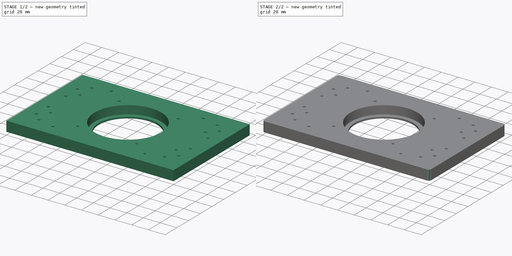
[diagram: build sequence overview — one tinted view per stage of 2, left to right]
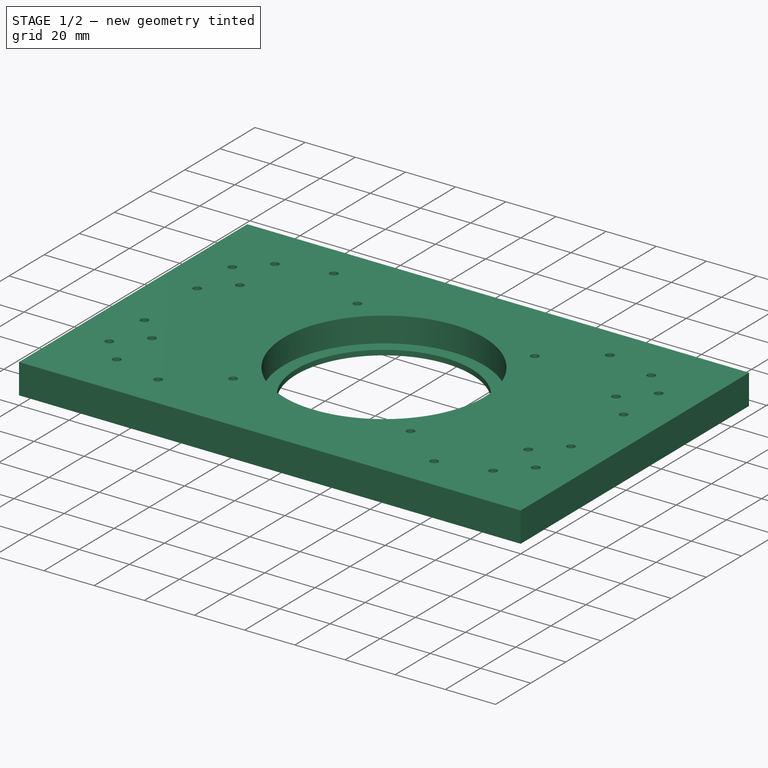
[diagram: stage 1 of 2 — iso view after this stage's code; geometry added in this stage tinted green]
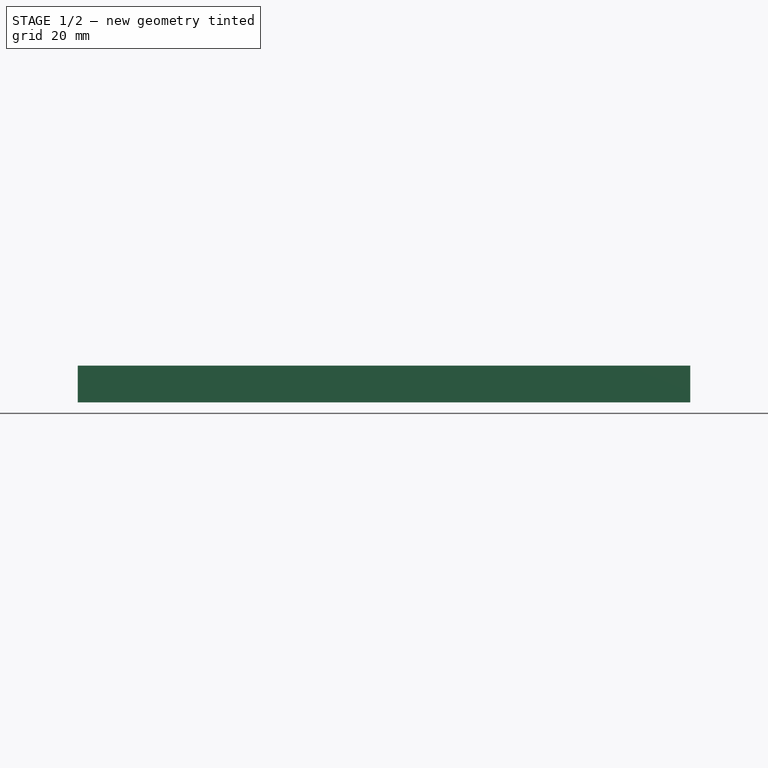
[diagram: stage 1 of 2 — front view after this stage's code; geometry added in this stage tinted green]
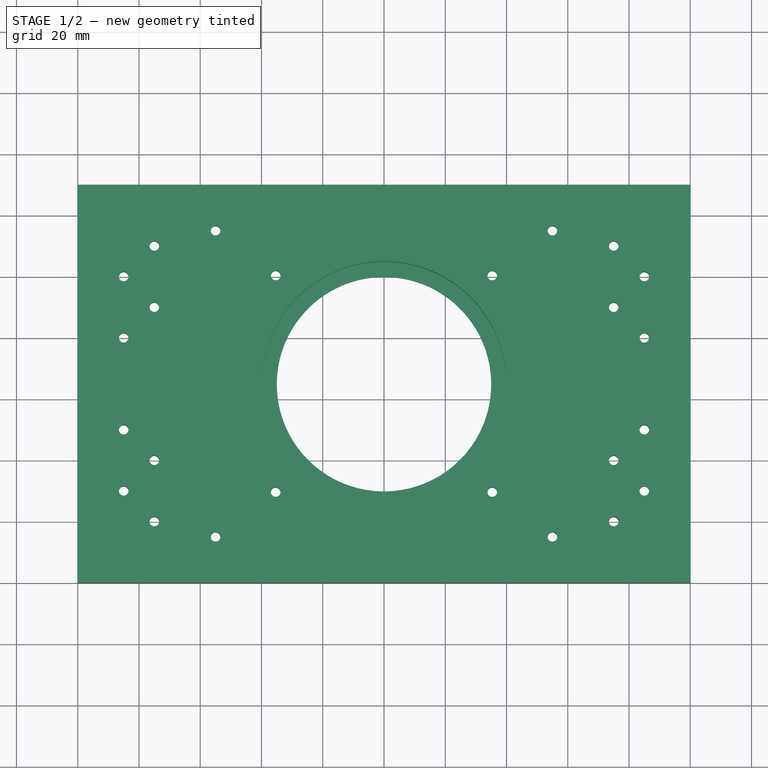
[diagram: stage 1 of 2 — top view after this stage's code; geometry added in this stage tinted green]
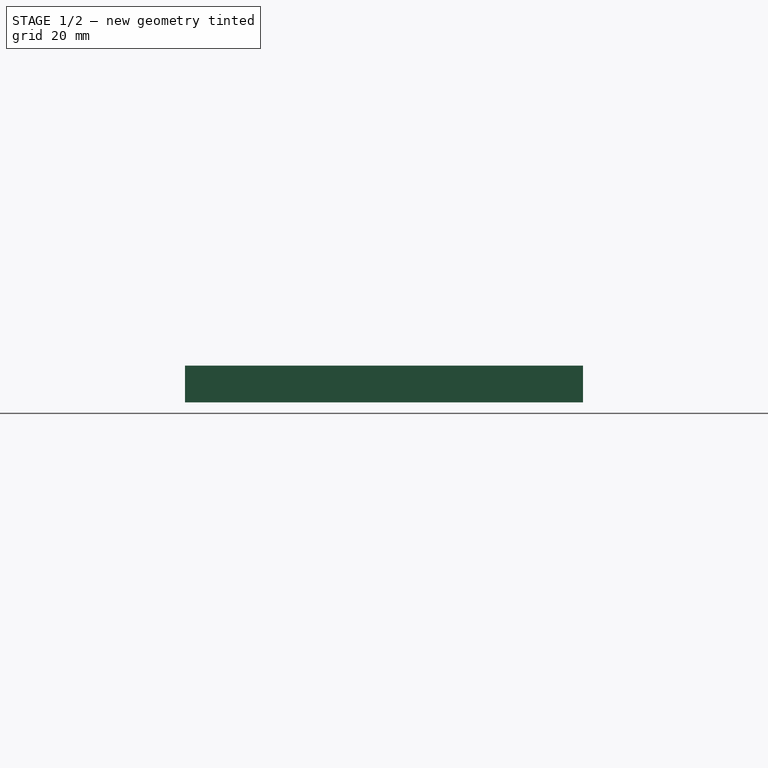
[diagram: stage 1 of 2 — right view after this stage's code; geometry added in this stage tinted green]
FCSTD DOCUMENT  (FreeCAD 0.19R24276 (Git))
Label: Plate_200x130_12_bear_support_H12_h10_from_part16_as4
License: All rights reserved
LicenseURL: http://en.wikipedia.org/wiki/All_rights_reserved
objects: Sketcher::SketchObject×2, PartDesign::Pad×1, PartDesign::Pocket×1, PartDesign::Fillet×1, PartDesign::Body×1
note: 9 computed .brp shape members not serialized (recipe doc carries the construction recipe); baked Part::Feature solids carry a one-line shape summary decoded from their .brp

FEATURE [Sketcher::SketchObject] Sketch  label="Sketch_d70"
  FullyConstrained = false
  MapMode = 5
  Support = -> [XY_Plane]
  sketch-geometry (44):
    g0: LineSegment StartX=0 StartY=0 StartZ=0 EndX=200 EndY=0 EndZ=0
    g1: LineSegment StartX=200 StartY=0 StartZ=0 EndX=200 EndY=130 EndZ=0
    g2: LineSegment StartX=200 StartY=130 StartZ=0 EndX=0 EndY=130 EndZ=0
    g3: LineSegment StartX=0 StartY=130 StartZ=0 EndX=0 EndY=0 EndZ=0
    g4: Circle CenterX=100 CenterY=65 CenterZ=0 NormalX=0 NormalY=0 NormalZ=1 AngleXU=0 Radius=35
    g5: Circle CenterX=45 CenterY=115 CenterZ=0 NormalX=0 NormalY=0 NormalZ=1 AngleXU=0 Radius=1.5625
    g6: Circle CenterX=45 CenterY=15 CenterZ=0 NormalX=0 NormalY=0 NormalZ=1 AngleXU=0 Radius=1.5625
    g7: Circle CenterX=155 CenterY=115 CenterZ=0 NormalX=0 NormalY=0 NormalZ=1 AngleXU=0 Radius=1.5625
    g8: Circle CenterX=155 CenterY=15 CenterZ=0 NormalX=0 NormalY=0 NormalZ=1 AngleXU=0 Radius=1.5625
    g9: LineSegment StartX=45 StartY=15 StartZ=0 EndX=45 EndY=115 EndZ=0
    g10: LineSegment StartX=45 StartY=15 StartZ=0 EndX=155 EndY=15 EndZ=0
    g11: LineSegment StartX=155 StartY=115 StartZ=0 EndX=155 EndY=15 EndZ=0
    g12: LineSegment StartX=45 StartY=115 StartZ=0 EndX=155 EndY=115 EndZ=0
    g13: Circle CenterX=185 CenterY=30 CenterZ=0 NormalX=0 NormalY=0 NormalZ=1 AngleXU=0 Radius=1.5625
    g14: LineSegment StartX=185 StartY=105 StartZ=0 EndX=185 EndY=30 EndZ=0
    g15: Circle CenterX=99.9949 CenterY=64.986 CenterZ=0 NormalX=0 NormalY=0 NormalZ=1 AngleXU=0 Radius=50
    g16: LineSegment StartX=100 StartY=65 StartZ=0 EndX=135.353 EndY=100.338 EndZ=0
    g17: LineSegment StartX=100 StartY=65 StartZ=0 EndX=64.6278 EndY=29.6424 EndZ=0
    g18: LineSegment StartX=100 StartY=65 StartZ=0 EndX=135.352 EndY=29.6329 EndZ=0
    g19: Circle CenterX=135.353 CenterY=100.338 CenterZ=0 NormalX=0 NormalY=0 NormalZ=1 AngleXU=0 Radius=1.5625
    g20: Circle CenterX=64.6278 CenterY=29.6424 CenterZ=0 NormalX=0 NormalY=0 NormalZ=1 AngleXU=0 Radius=1.5625
    g21: LineSegment StartX=100 StartY=65 StartZ=0 EndX=64.6564 EndY=100.358 EndZ=0
    g22: Circle CenterX=64.6446 CenterY=100.355 CenterZ=0 NormalX=0 NormalY=0 NormalZ=1 AngleXU=0 Radius=1.5625
    g23: Circle CenterX=135.352 CenterY=29.6329 CenterZ=0 NormalX=0 NormalY=0 NormalZ=1 AngleXU=0 Radius=1.5625
    g24: LineSegment StartX=175 StartY=121.301 StartZ=0 EndX=175 EndY=20 EndZ=0
    g25: Circle CenterX=175 CenterY=20 CenterZ=0 NormalX=0 NormalY=0 NormalZ=1 AngleXU=0 Radius=1.5625
    g26: Circle CenterX=175 CenterY=40 CenterZ=0 NormalX=0 NormalY=0 NormalZ=1 AngleXU=0 Radius=1.5625
    g27: Circle CenterX=185 CenterY=50 CenterZ=0 NormalX=0 NormalY=0 NormalZ=1 AngleXU=0 Radius=1.5625
    g28: LineSegment StartX=100 StartY=65 StartZ=0 EndX=228.555 EndY=65 EndZ=0
    g29: Circle CenterX=175 CenterY=90 CenterZ=0 NormalX=0 NormalY=0 NormalZ=1 AngleXU=0 Radius=1.5625
    g30: Circle CenterX=175 CenterY=110 CenterZ=0 NormalX=0 NormalY=0 NormalZ=1 AngleXU=0 Radius=1.5625
    g31: Circle CenterX=185 CenterY=80 CenterZ=0 NormalX=0 NormalY=0 NormalZ=1 AngleXU=0 Radius=1.5625
    g32: Circle CenterX=185 CenterY=100 CenterZ=0 NormalX=0 NormalY=0 NormalZ=1 AngleXU=0 Radius=1.5625
    g33: LineSegment StartX=100 StartY=65 StartZ=0 EndX=100 EndY=146.994 EndZ=0
    g34: Circle CenterX=15 CenterY=30 CenterZ=0 NormalX=0 NormalY=0 NormalZ=1 AngleXU=0 Radius=1.5625
    g35: LineSegment StartX=15 StartY=105 StartZ=0 EndX=15 EndY=30 EndZ=0
    g36: LineSegment StartX=25 StartY=121.301 StartZ=0 EndX=25 EndY=20 EndZ=0
    g37: Circle CenterX=25 CenterY=20 CenterZ=0 NormalX=0 NormalY=0 NormalZ=1 AngleXU=0 Radius=1.5625
    g38: Circle CenterX=25 CenterY=40 CenterZ=0 NormalX=0 NormalY=0 NormalZ=1 AngleXU=0 Radius=1.5625
    g39: Circle CenterX=15 CenterY=50 CenterZ=0 NormalX=0 NormalY=0 NormalZ=1 AngleXU=0 Radius=1.5625
    g40: Circle CenterX=25 CenterY=90 CenterZ=0 NormalX=0 NormalY=0 NormalZ=1 AngleXU=0 Radius=1.5625
    g41: Circle CenterX=25 CenterY=110 CenterZ=0 NormalX=0 NormalY=0 NormalZ=1 AngleXU=0 Radius=1.5625
    g42: Circle CenterX=15 CenterY=80 CenterZ=0 NormalX=0 NormalY=0 NormalZ=1 AngleXU=0 Radius=1.5625
    g43: Circle CenterX=15 CenterY=100 CenterZ=0 NormalX=0 NormalY=0 NormalZ=1 AngleXU=0 Radius=1.5625
  constraints (89):
    c: Coincident(g0,g1)
    c: Coincident(g1,g2)
    c: Coincident(g2,g3)
    c: Coincident(g3,g0)
    c: Horizontal(g0)
    c: Horizontal(g2)
    c: Vertical(g1)
    c: Vertical(g3)
    c: Coincident(g0,g-1)
    c: DistanceY(g1,g1) = 130
    c: DistanceX(g0,g0) = 200
    c: Symmetric(g2,g0,g4)
    c: Diameter(g4) = 70
    c: DistanceX(g0,g6) = 45
    c: Coincident(g9,g6)
    c: Coincident(g9,g5)
    c: Vertical(g9)
    c: Coincident(g10,g6)
    c: Coincident(g10,g8)
    c: Horizontal(g10)
    c: Coincident(g11,g7)
    c: Coincident(g11,g8)
    c: Vertical(g11)
    c: Coincident(g12,g5)
    c: Coincident(g12,g7)
    c: Horizontal(g12)
    c: Symmetric(g7,g6,g4)
    c: DistanceY(g0,g6) = 15
    c: Coincident(g14,g13)
    c: Vertical(g14)
    c: Equal(g5,g6)
    c: Equal(g5,g8)
    c: Equal(g5,g7)
    c: DistanceX(g13,g0) = 15
    c: Diameter(g15) = 100
    c: Coincident(g16,g4)
    c: Coincident(g17,g4)
    c: Coincident(g18,g4)
    c: Parallel(g17,g16)
    c: Angle(g17,g18) = 1.5708
    c: PointOnObject(g18,g15)
    c: PointOnObject(g17,g15)
    c: PointOnObject(g16,g15)
    c: Coincident(g19,g16)
    c: Coincident(g20,g17)
    c: Coincident(g21,g4)
    c: Parallel(g18,g21)
    c: PointOnObject(g21,g15)
    c: Coincident(g23,g18)
    c: Diameter(g23) = 3.125
    c: Equal(g23,g19)
    c: Equal(g23,g22)
    c: Equal(g23,g20)
    c: Vertical(g24)
    c: DistanceX(g24,g0) = 25
    c: DistanceY(g0,g13) = 30
    c: Coincident(g25,g24)
    c: Equal(g13,g25)
    c: DistanceY(g0,g24) = 20
    c: PointOnObject(g26,g24)
    c: Equal(g25,g26)
    c: DistanceY(g24,g26) = 20
    c: PointOnObject(g27,g14)
    c: Equal(g26,g27)
    c: DistanceY(g13,g27) = 20
    c: Coincident(g28,g4)
    c: Horizontal(g28)
    c: Equal(g32,g30)
    c: Equal(g30,g29)
    c: Equal(g29,g31)
    c: Coincident(g33,g4)
    c: Vertical(g33)
    c: Coincident(g35,g34)
    c: Vertical(g35)
    c: Vertical(g36)
    c: Coincident(g37,g36)
    c: Equal(g34,g37)
    c: PointOnObject(g38,g36)
    c: Equal(g37,g38)
    c: PointOnObject(g39,g35)
    c: Equal(g38,g39)
    c: Equal(g43,g41)
    c: Equal(g41,g40)
    c: Equal(g40,g42)
    c: Diameter(g25) = 3.125
    c: Equal(g31,g27)
    c: Equal(g41,g30)
    c: Equal(g40,g38)
    c: Equal(g41,g5)
FEATURE [PartDesign::Pad] Pad  label="Pad_h12"
  Direction = (1,1,1)
  Length = 12
  Length2 = 100
  Profile = -> Sketch
  Type = 0
FEATURE [Sketcher::SketchObject] Sketch001  label="Sketch001_d80"
  FullyConstrained = true
  MapMode = 5
  Placement = pos=(0,0,12) rot=(0,0,1;0rad)
  Support = -> [Pad]
  sketch-geometry (1):
    g0: Circle CenterX=100 CenterY=65 CenterZ=0 NormalX=0 NormalY=0 NormalZ=1 AngleXU=0 Radius=40
  constraints (3):
    c: DistanceY(g-1,g0) = 65
    c: DistanceX(g-1,g0) = 100
    c: Diameter(g0) = 80
FEATURE [PartDesign::Pocket] Pocket  label="Pocket_H10"
  BaseFeature = -> Pad
  Length = 10
  Length2 = 100
  Profile = -> Sketch001
  Type = 0
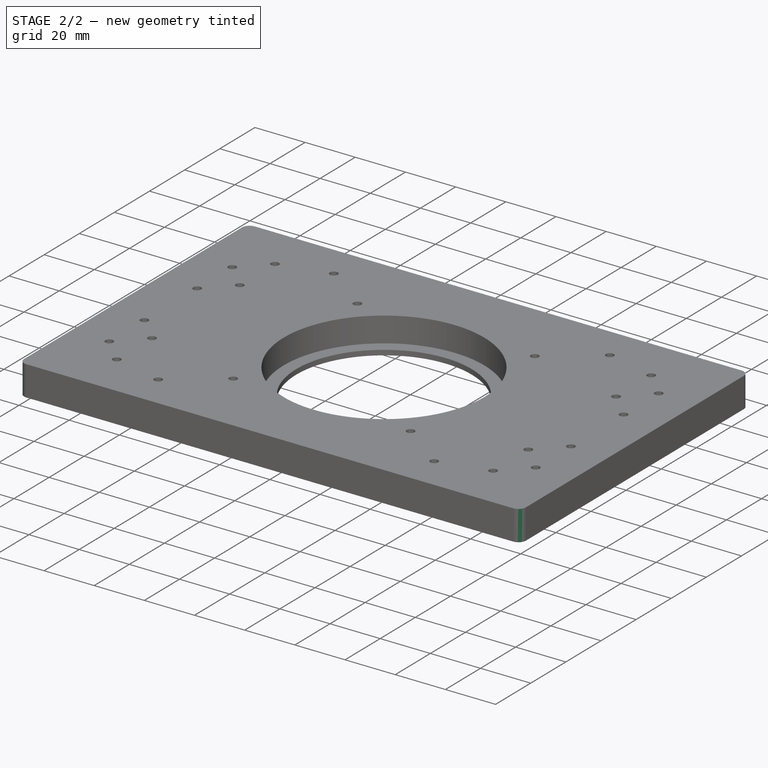
[diagram: stage 2 of 2 — iso view after this stage's code; geometry added in this stage tinted green]
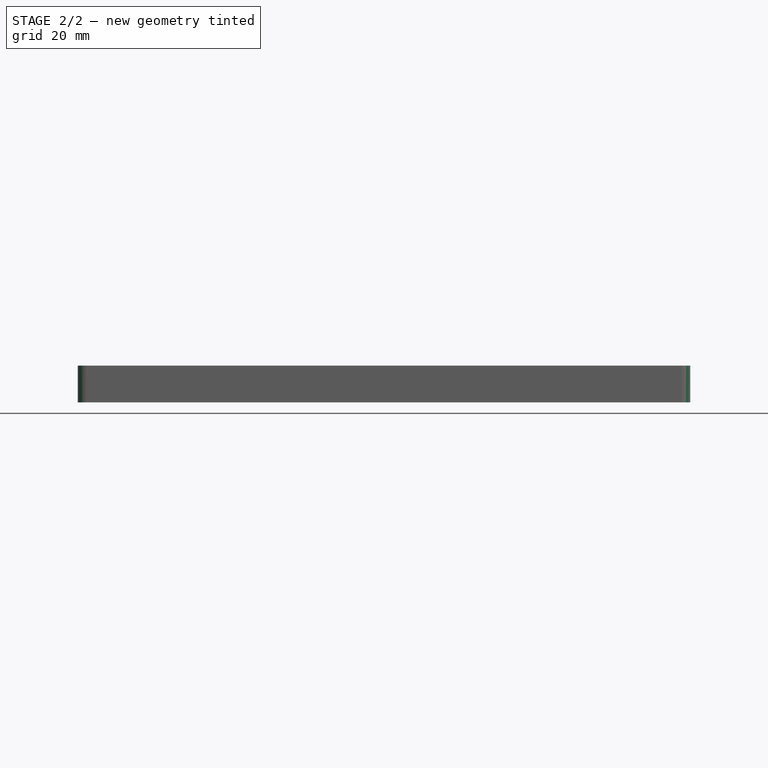
[diagram: stage 2 of 2 — front view after this stage's code; geometry added in this stage tinted green]
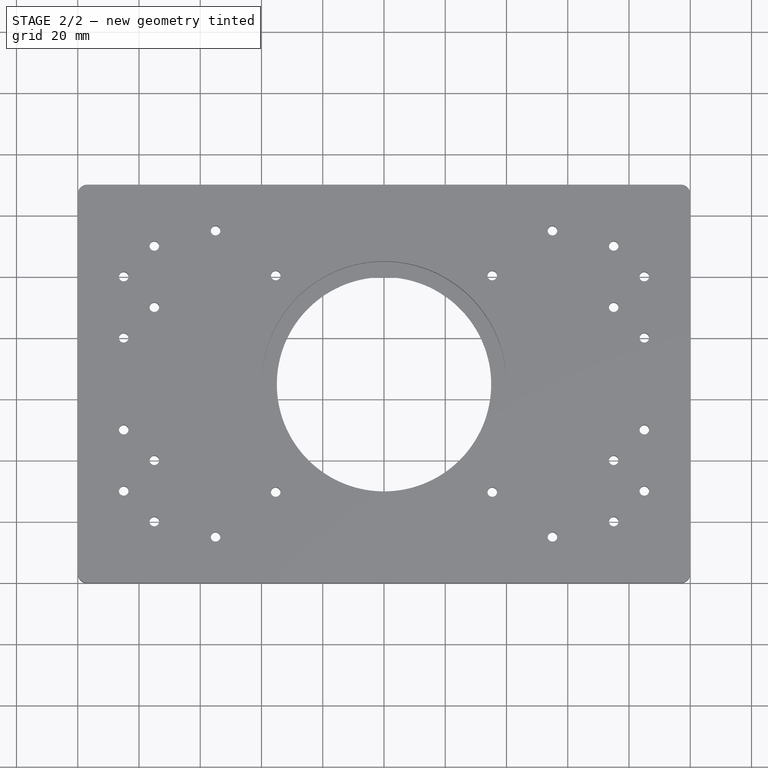
[diagram: stage 2 of 2 — top view after this stage's code; geometry added in this stage tinted green]
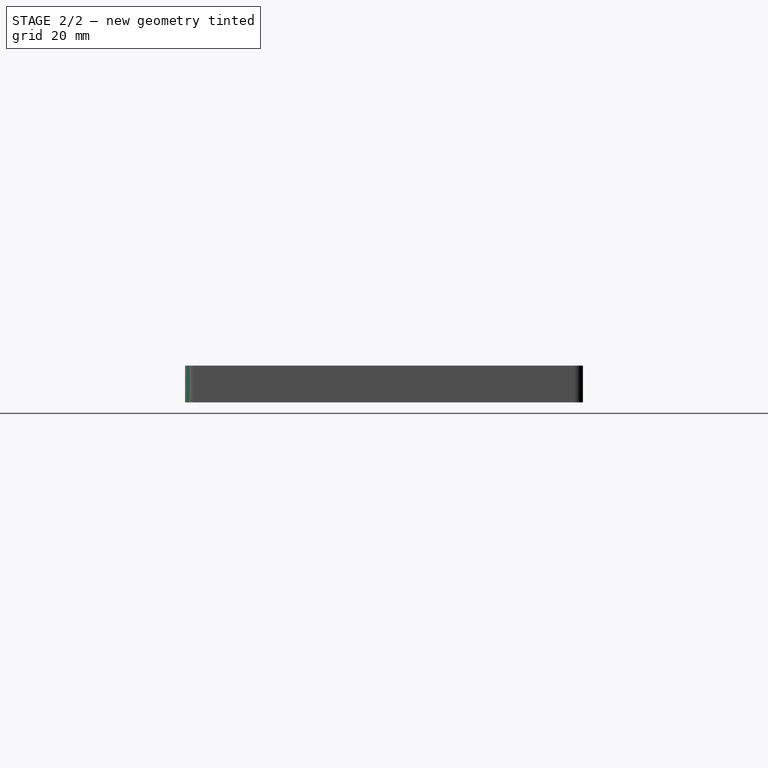
[diagram: stage 2 of 2 — right view after this stage's code; geometry added in this stage tinted green]
FEATURE [PartDesign::Fillet] Fillet
  Base = -> Pocket [Edge2,Edge8,Edge1,Edge5]
  BaseFeature = -> Pocket
  Radius = 3
  SupportTransform = false
FEATURE [PartDesign::Body] Body
  Group = -> [Sketch,Pad,Sketch001,Pocket,Fillet]
  Origin = -> Origin
  Tip = -> Fillet
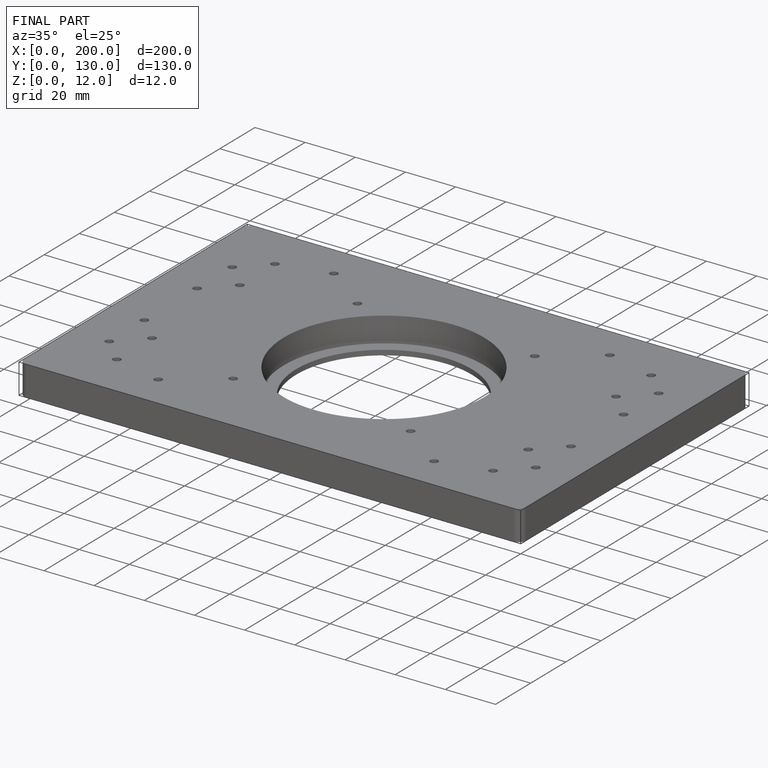
[diagram: finished part — iso view with bounding-box wireframe]
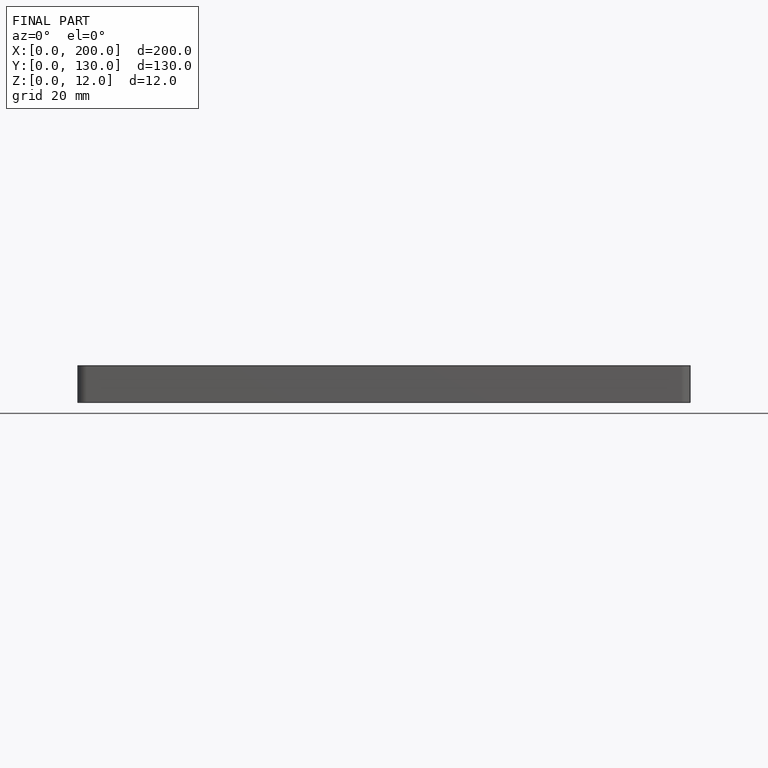
[diagram: finished part — front view with bounding-box wireframe]
